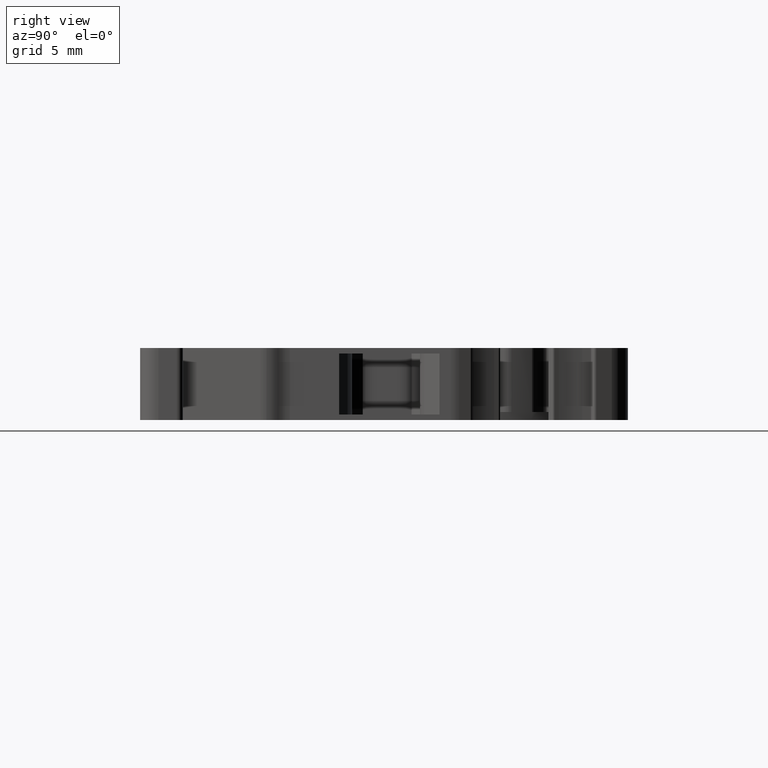
[diagram: clean part render]
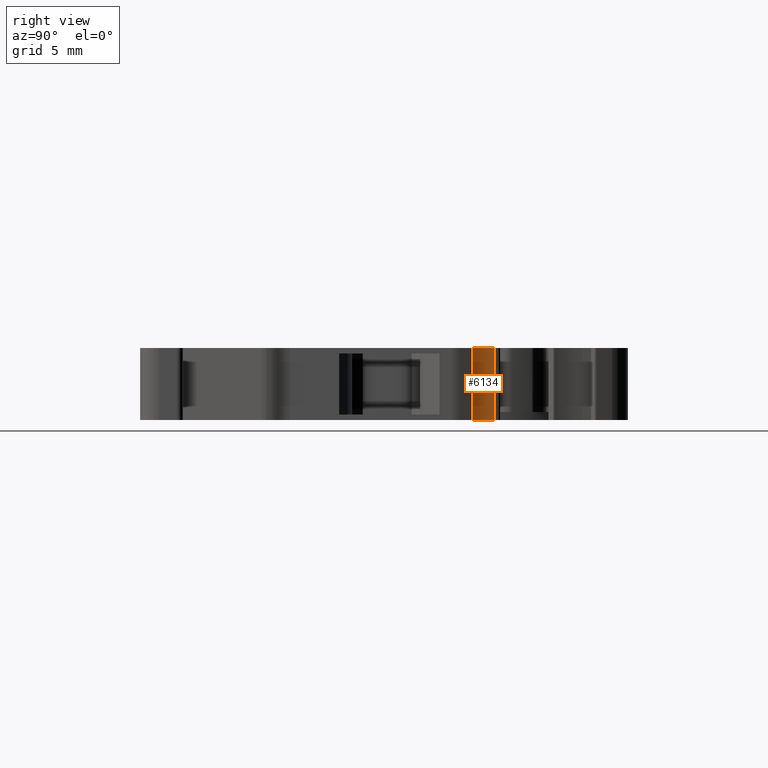
[diagram: same view with one face highlighted and labeled with its STEP entity id]
A machine part, right view. The second image highlights one B-rep face of the part: STEP entity #6134.
In plain terms, the highlighted cylindrical surface (partial cylindrical patch) has radius 7.5 mm, axis along (0, 0, -1).
Its self-contained STEP definition (entity closure, byte-faithful):
#54 = DIRECTION ( 'NONE',  ( -1.000000000000000000, 1.480297500537146900E-014, 0.0000000000000000000 ) ) ;
#65 = DIRECTION ( 'NONE',  ( -0.0000000000000000000, -0.0000000000000000000, 1.000000000000000000 ) ) ;
#67 = CARTESIAN_POINT ( 'NONE',  ( 1484.299094553757900, 949.0839528624162500, -2.950000000000001100 ) ) ;
#155 = DIRECTION ( 'NONE',  ( 0.0000000000000000000, 0.0000000000000000000, -1.000000000000000000 ) ) ;
#197 = LINE ( 'NONE', #198, #1291 ) ;
#198 = CARTESIAN_POINT ( 'NONE',  ( 1477.251402589807600, 946.5187963819329300, 2.899999999999999900 ) ) ;
#1264 = AXIS2_PLACEMENT_3D ( 'NONE', #67, #65, #54 ) ;
#1283 = CIRCLE ( 'NONE', #1264, 7.499999319206418500 ) ;
#1291 = VECTOR ( 'NONE', #155, 1000.000000000000000 ) ;
#1405 = VECTOR ( 'NONE', #9935, 1000.000000000000000 ) ;
#1494 = AXIS2_PLACEMENT_3D ( 'NONE', #9971, #10026, #10028 ) ;
#4295 = ORIENTED_EDGE ( 'NONE', *, *, #5986, .F. ) ;
#4318 = ORIENTED_EDGE ( 'NONE', *, *, #6115, .F. ) ;
#4395 = ORIENTED_EDGE ( 'NONE', *, *, #6929, .F. ) ;
#4412 = ORIENTED_EDGE ( 'NONE', *, *, #5953, .F. ) ;
#5953 = EDGE_CURVE ( 'NONE', #11890, #11846, #1283, .T. ) ;
#5986 = EDGE_CURVE ( 'NONE', #11772, #11890, #197, .T. ) ;
#6115 = EDGE_CURVE ( 'NONE', #11846, #11740, #9957, .T. ) ;
#6134 = ADVANCED_FACE ( 'NONE', ( #10055 ), #9969, .F. ) ;
#6929 = EDGE_CURVE ( 'NONE', #11740, #11772, #10287, .T. ) ;
#7018 = CARTESIAN_POINT ( 'NONE',  ( 1484.299094553757900, 949.0839528624162500, 2.949999999999999700 ) ) ;
#7019 = DIRECTION ( 'NONE',  ( 0.0000000000000000000, 0.0000000000000000000, -1.000000000000000000 ) ) ;
#7053 = DIRECTION ( 'NONE',  ( -1.000000000000000000, 0.0000000000000000000, 0.0000000000000000000 ) ) ;
#8185 = CARTESIAN_POINT ( 'NONE',  ( 1478.155454105551600, 944.7821309424318800, 2.949999999999999700 ) ) ;
#8274 = CARTESIAN_POINT ( 'NONE',  ( 1477.251400817715900, 946.5187957370773100, 2.949999999999999700 ) ) ;
#8282 = CARTESIAN_POINT ( 'NONE',  ( 1477.251400817732200, 946.5187957370326300, -2.950000000000002800 ) ) ;
#8310 = CARTESIAN_POINT ( 'NONE',  ( 1478.155454105570200, 944.7821309424042500, -2.950000000000000200 ) ) ;
#9935 = DIRECTION ( 'NONE',  ( -0.0000000000000000000, -0.0000000000000000000, 1.000000000000000000 ) ) ;
#9947 = CARTESIAN_POINT ( 'NONE',  ( 1478.155454105570700, 944.7821309424044800, 2.899999999999999900 ) ) ;
#9957 = LINE ( 'NONE', #9947, #1405 ) ;
#9969 = CYLINDRICAL_SURFACE ( 'NONE', #1494, 7.499999319206418500 ) ;
#9971 = CARTESIAN_POINT ( 'NONE',  ( 1484.299094553757900, 949.0839528624162500, 2.899999999999999900 ) ) ;
#10026 = DIRECTION ( 'NONE',  ( 0.0000000000000000000, 0.0000000000000000000, -1.000000000000000000 ) ) ;
#10028 = DIRECTION ( 'NONE',  ( -1.000000000000000000, 0.0000000000000000000, 0.0000000000000000000 ) ) ;
#10055 = FACE_OUTER_BOUND ( 'NONE', #11495, .T. ) ;
#10279 = AXIS2_PLACEMENT_3D ( 'NONE', #7018, #7019, #7053 ) ;
#10287 = CIRCLE ( 'NONE', #10279, 7.499999319206418500 ) ;
#11495 = EDGE_LOOP ( 'NONE', ( #4295, #4395, #4318, #4412 ) ) ;
#11740 = VERTEX_POINT ( 'NONE', #8185 ) ;
#11772 = VERTEX_POINT ( 'NONE', #8274 ) ;
#11846 = VERTEX_POINT ( 'NONE', #8310 ) ;
#11890 = VERTEX_POINT ( 'NONE', #8282 ) ;